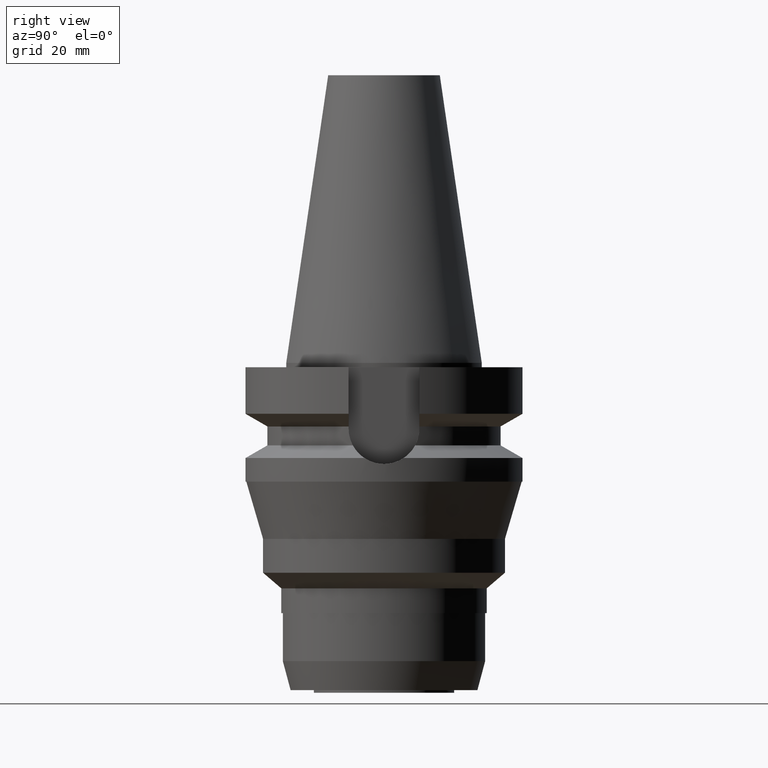
[diagram: clean part render]
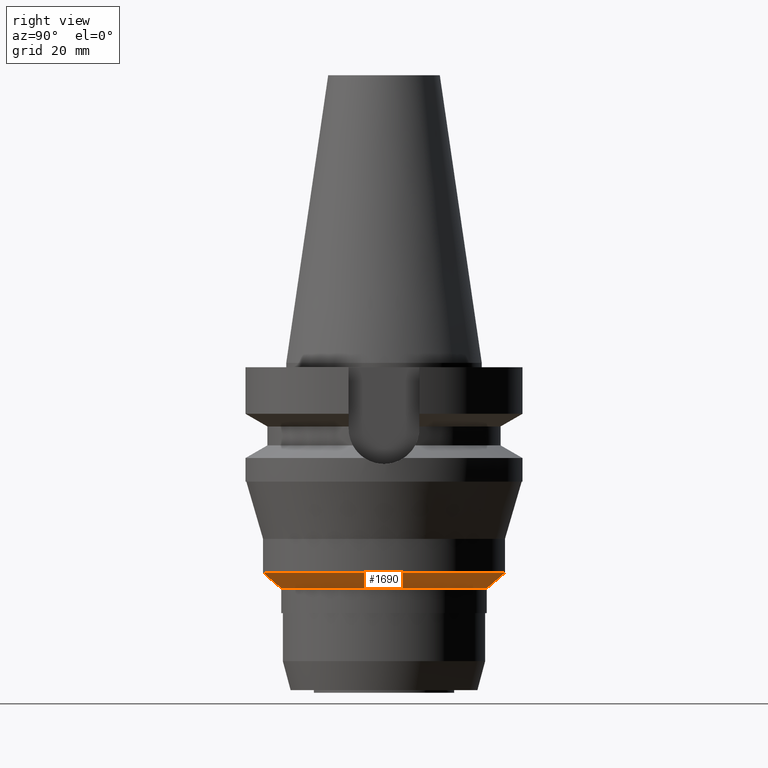
[diagram: same view with one face highlighted and labeled with its STEP entity id]
A machine part, right view. The second image highlights one B-rep face of the part: STEP entity #1690.
In plain terms, the highlighted conical surface has half-angle 49.4 deg.
Its self-contained STEP definition (entity closure, byte-faithful):
#438=DIRECTION('',(0.E0,7.592713073349E-1,-6.507742172658E-1));
#439=VECTOR('',#438,5.465766926669E0);
#440=CARTESIAN_POINT('',(0.E0,-2.75E1,-4.77E1));
#441=LINE('',#440,#439);
#453=DIRECTION('',(0.E0,-7.592713073349E-1,-6.507742172658E-1));
#454=VECTOR('',#453,5.465766926669E0);
#455=CARTESIAN_POINT('',(0.E0,2.75E1,-4.77E1));
#456=LINE('',#455,#454);
#460=CARTESIAN_POINT('',(0.E0,0.E0,-5.125698019346E1));
#461=DIRECTION('',(0.E0,0.E0,-1.E0));
#462=DIRECTION('',(0.E0,1.E0,0.E0));
#463=AXIS2_PLACEMENT_3D('',#460,#461,#462);
#468=CARTESIAN_POINT('',(0.E0,0.E0,-4.77E1));
#469=DIRECTION('',(0.E0,0.E0,1.E0));
#470=DIRECTION('',(0.E0,-1.E0,0.E0));
#471=AXIS2_PLACEMENT_3D('',#468,#469,#470);
#1168=CARTESIAN_POINT('',(0.E0,2.335E1,-5.125698019346E1));
#1169=VERTEX_POINT('',#1168);
#1170=CARTESIAN_POINT('',(0.E0,-2.335E1,-5.125698019346E1));
#1171=VERTEX_POINT('',#1170);
#1172=CARTESIAN_POINT('',(0.E0,2.75E1,-4.77E1));
#1173=VERTEX_POINT('',#1172);
#1174=CARTESIAN_POINT('',(0.E0,-2.75E1,-4.77E1));
#1175=VERTEX_POINT('',#1174);
#1678=CARTESIAN_POINT('',(0.E0,0.E0,-4.947849009673E1));
#1679=DIRECTION('',(0.E0,0.E0,1.E0));
#1680=DIRECTION('',(0.E0,1.E0,0.E0));
#1681=AXIS2_PLACEMENT_3D('',#1678,#1679,#1680);
#1682=CONICAL_SURFACE('',#1681,2.5425E1,4.94E1);
#1683=ORIENTED_EDGE('',*,*,#1668,.T.);
#1684=ORIENTED_EDGE('',*,*,#1645,.T.);
#1685=ORIENTED_EDGE('',*,*,#1672,.F.);
#1687=ORIENTED_EDGE('',*,*,#1686,.T.);
#1688=EDGE_LOOP('',(#1683,#1684,#1685,#1687));
#1689=FACE_OUTER_BOUND('',#1688,.F.);
#464=CIRCLE('',#463,2.335E1);
#472=CIRCLE('',#471,2.75E1);
#1645=EDGE_CURVE('',#1169,#1171,#464,.T.);
#1668=EDGE_CURVE('',#1173,#1169,#456,.T.);
#1672=EDGE_CURVE('',#1175,#1171,#441,.T.);
#1686=EDGE_CURVE('',#1175,#1173,#472,.T.);
#1690=ADVANCED_FACE('',(#1689),#1682,.T.);